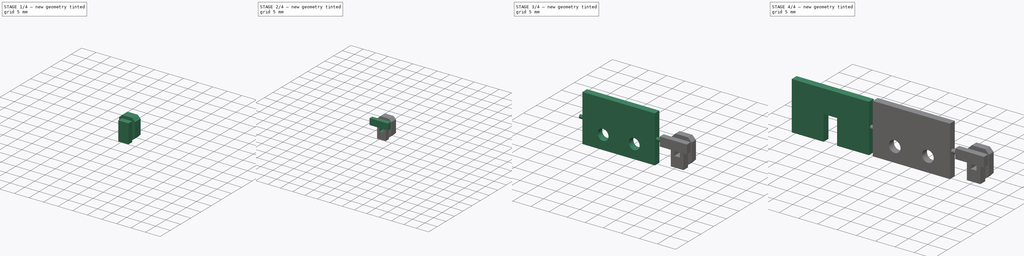
[diagram: build sequence overview — one tinted view per stage of 4, left to right]
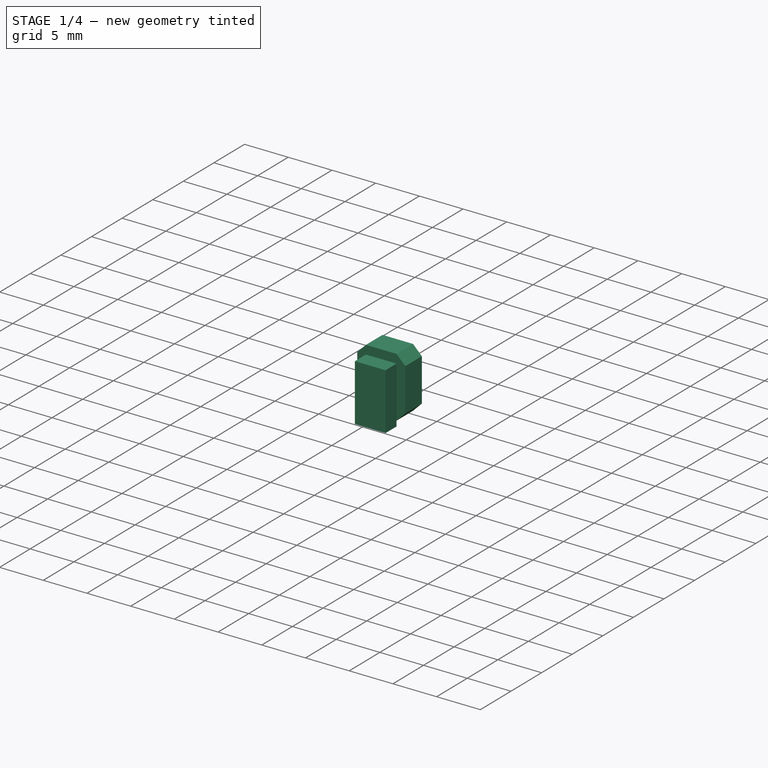
[diagram: stage 1 of 4 — iso view after this stage's code; geometry added in this stage tinted green]
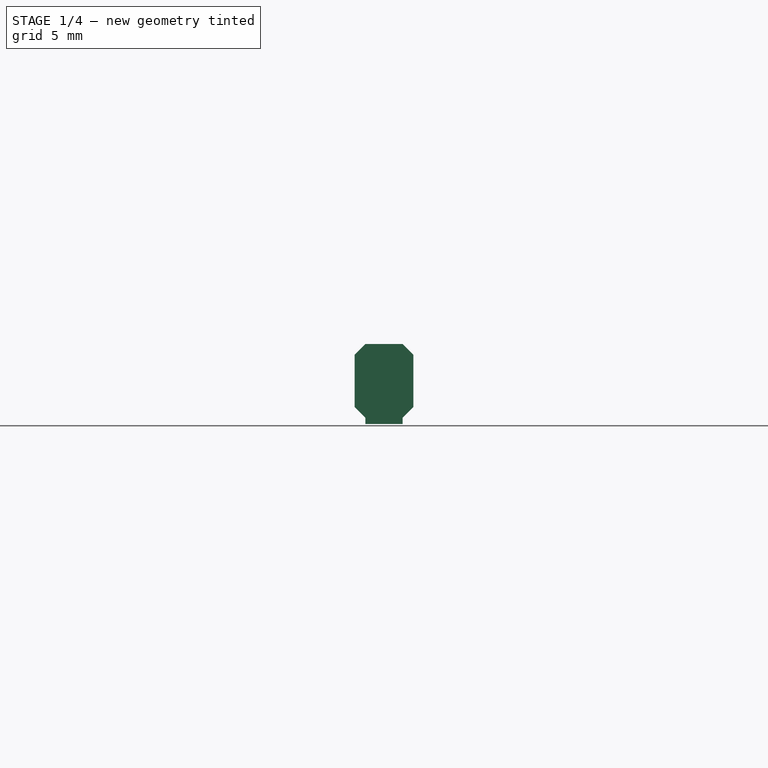
[diagram: stage 1 of 4 — front view after this stage's code; geometry added in this stage tinted green]
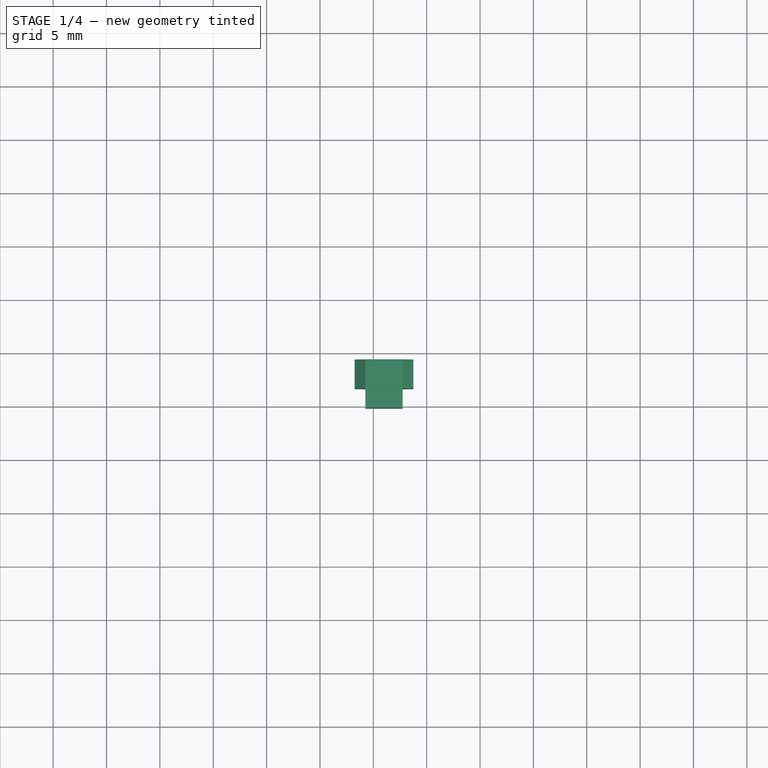
[diagram: stage 1 of 4 — top view after this stage's code; geometry added in this stage tinted green]
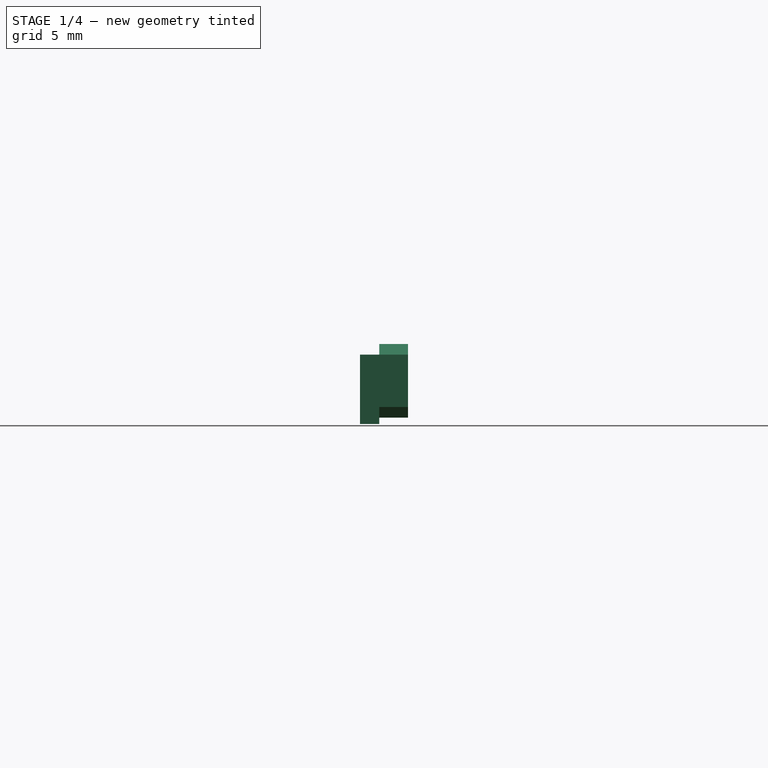
[diagram: stage 1 of 4 — right view after this stage's code; geometry added in this stage tinted green]
FCSTD DOCUMENT  (FreeCAD 0.16R6706 (Git))
Label: covers-cap
License: All rights reserved
LicenseURL: http://en.wikipedia.org/wiki/All_rights_reserved
objects: Sketcher::SketchObject×7, PartDesign::Pad×6, PartDesign::Pocket×1, PartDesign::Chamfer×1, Part::MultiFuse×1
note: 23 computed .brp shape members not serialized (recipe doc carries the construction recipe); baked Part::Feature solids carry a one-line shape summary decoded from their .brp

FEATURE [Sketcher::SketchObject] Sketch  label="Body"
  Placement = pos=(36,1.65,0) rot=(1,0,0;1.5708rad)
  sketch-geometry (4):
    g0: LineSegment StartX=1.75 StartY=0 StartZ=0 EndX=-1.75 EndY=0 EndZ=0
    g1: LineSegment StartX=-1.75 StartY=0 StartZ=0 EndX=-1.75 EndY=6.5 EndZ=0
    g2: LineSegment StartX=-1.75 StartY=6.5 StartZ=0 EndX=1.75 EndY=6.5 EndZ=0
    g3: LineSegment StartX=1.75 StartY=6.5 StartZ=0 EndX=1.75 EndY=0 EndZ=0
  constraints (12):
    c: Coincident(g0,g1)
    c: Coincident(g1,g2)
    c: Coincident(g2,g3)
    c: Coincident(g3,g0)
    c: Horizontal(g0)
    c: Horizontal(g2)
    c: Vertical(g1)
    c: Vertical(g3)
    c: PointOnObject(g0,g-1)
    c: Symmetric(g2,g1,g-2)
    c: DistanceY(g3,g3) = 6.5  'Height'
    c: DistanceX(g2,g2) = 3.5  'Width'
FEATURE [PartDesign::Pad] Pad002  label="PadBody"
  Length = 1.8
  Length2 = 100
  Placement = pos=(36,1.65,0) rot=(1,0,0;1.5708rad)
  Sketch = -> Sketch
  Type = 0
FEATURE [Sketcher::SketchObject] Sketch003  label="Cap"
  ExternalGeometry = -> [Pad002]
  Placement = pos=(36,1.65,0) rot=(-1,0,0;1.5708rad)
  Support = -> Pad002 [Face5]
  sketch-geometry (8):
    g0: LineSegment StartX=-1.75 StartY=-0.6 StartZ=0 EndX=1.75 EndY=-0.6 EndZ=0
    g1: LineSegment StartX=2.75 StartY=-1.6 StartZ=0 EndX=2.75 EndY=-6.5 EndZ=0
    g2: LineSegment StartX=1.75 StartY=-7.5 StartZ=0 EndX=-1.75 EndY=-7.5 EndZ=0
    g3: LineSegment StartX=-2.75 StartY=-6.5 StartZ=0 EndX=-2.75 EndY=-1.6 EndZ=0
    g4: LineSegment StartX=-1.75 StartY=-0.6 StartZ=0 EndX=-2.75 EndY=-1.6 EndZ=0
    g5: LineSegment StartX=1.75 StartY=-0.6 StartZ=0 EndX=2.75 EndY=-1.6 EndZ=0
    g6: LineSegment StartX=2.75 StartY=-6.5 StartZ=0 EndX=1.75 EndY=-7.5 EndZ=0
    g7: LineSegment StartX=-2.75 StartY=-6.5 StartZ=0 EndX=-1.75 EndY=-7.5 EndZ=0
  constraints (23):
    c: Horizontal(g2)
    c: Vertical(g1)
    c: Vertical(g3)
    c: Coincident(g0,g4)  'Constraint8'
    c: Coincident(g3,g4)  'Constraint7'
    c: Coincident(g0,g5)  'Constraint6'
    c: Coincident(g1,g5)
    c: DistanceY(g0,g-3) = 0.6  'ClearancePCB'
    c: Coincident(g3,g7)
    c: Coincident(g2,g7)
    c: Coincident(g2,g6)
    c: Coincident(g1,g6)
    c: DistanceY(g2,g0) = 6.9  'Height'
    c: DistanceX(g3,g1) = 5.5  'Width'
    c: Equal(g6,g7)
    c: Equal(g7,g4)
    c: Equal(g4,g5)
    c: Symmetric(g0,g0,g-2)
    c: DistanceX(g4,g4) = 1  'ChamferWidth'
    c: DistanceY(g4,g4) = 1  'ChamferHeight'
    c: Symmetric(g1,g3,g-2)
    c: Equal(g3,g1)
    c: Equal(g2,g0)
FEATURE [PartDesign::Pad] Pad003  label="PadCap"
  Length = 2.7
  Length2 = 100
  Placement = pos=(36,1.65,0) rot=(1,0,0;1.5708rad)
  Sketch = -> Sketch003
  Type = 0
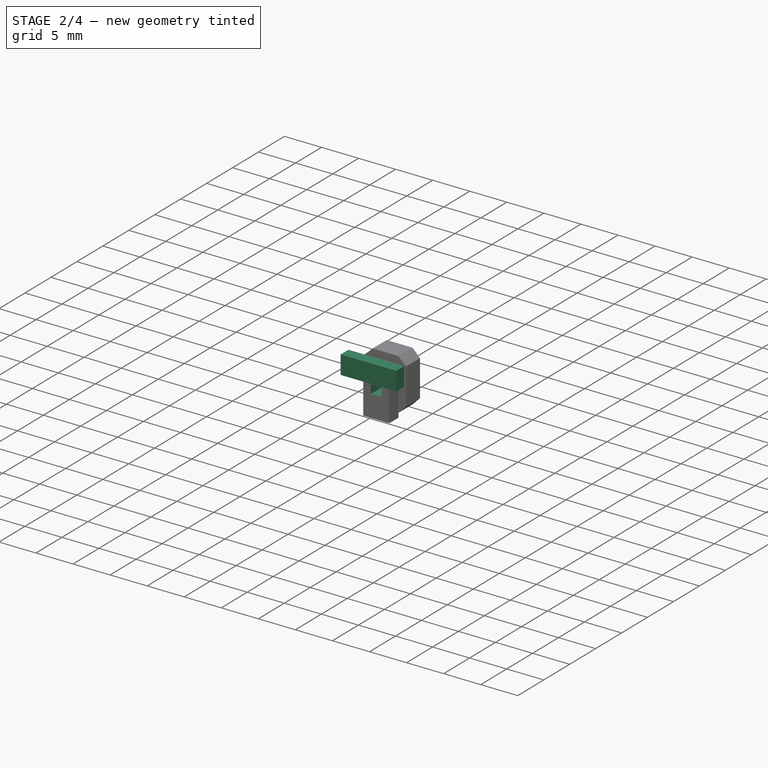
[diagram: stage 2 of 4 — iso view after this stage's code; geometry added in this stage tinted green]
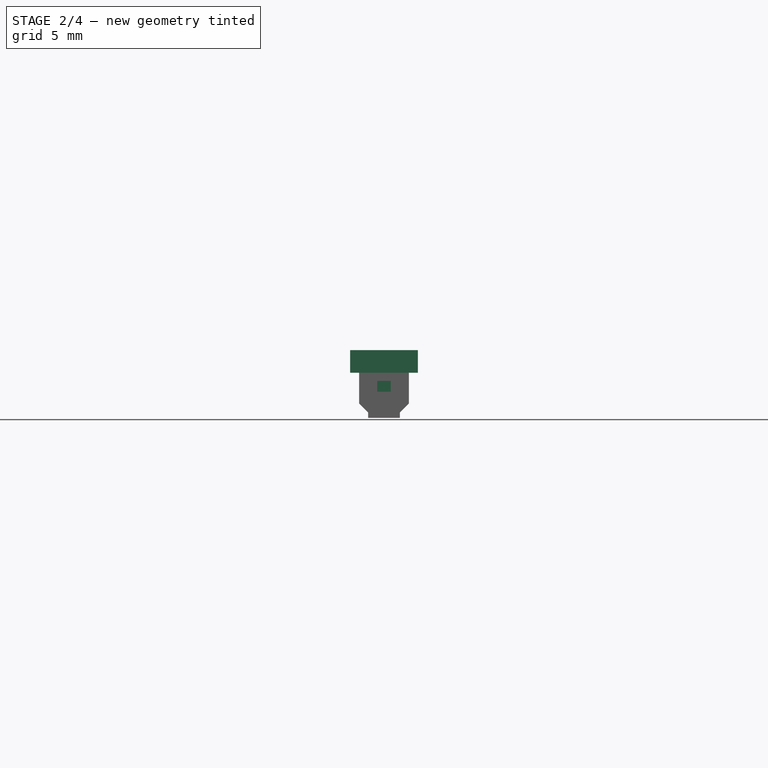
[diagram: stage 2 of 4 — front view after this stage's code; geometry added in this stage tinted green]
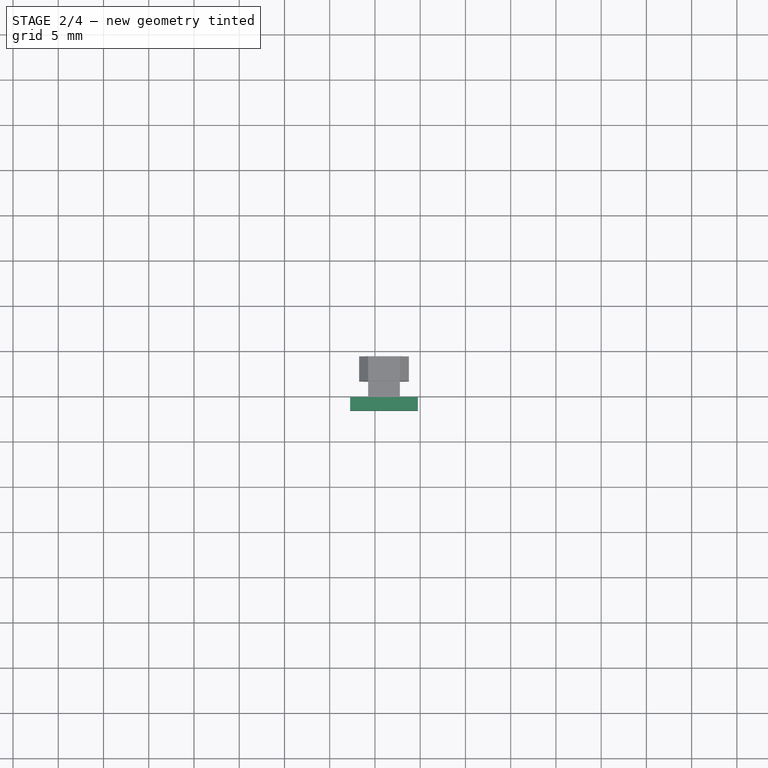
[diagram: stage 2 of 4 — top view after this stage's code; geometry added in this stage tinted green]
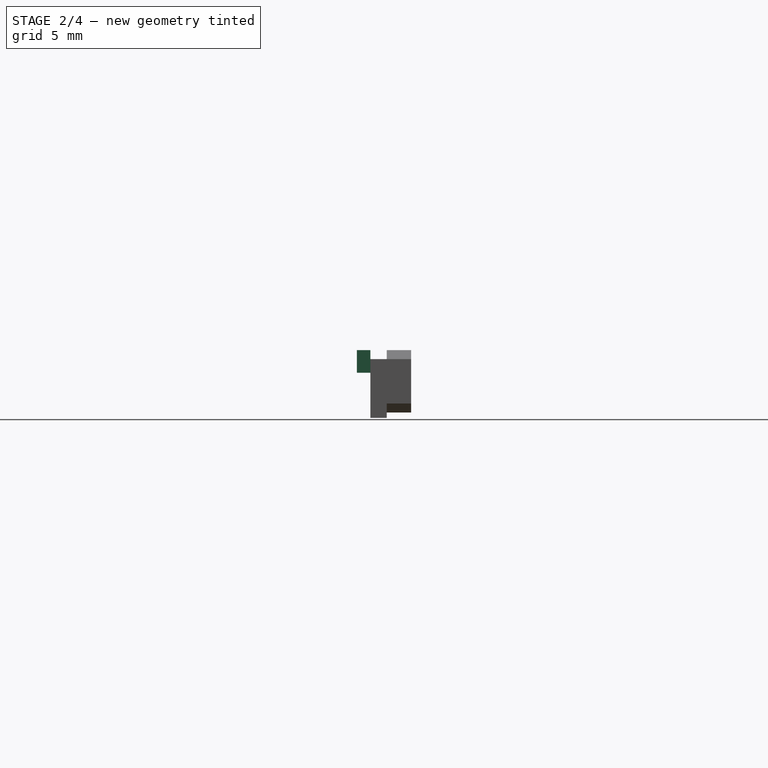
[diagram: stage 2 of 4 — right view after this stage's code; geometry added in this stage tinted green]
FEATURE [Sketcher::SketchObject] Sketch004  label="SwitchHole"
  ExternalGeometry = -> [Pad003]
  Placement = pos=(36,-0.15,0) rot=(1,0,0;1.5708rad)
  Support = -> Pad003 [Face5]
  sketch-geometry (4):
    g0: LineSegment StartX=-0.75 StartY=4.1 StartZ=0 EndX=0.75 EndY=4.1 EndZ=0
    g1: LineSegment StartX=0.75 StartY=4.1 StartZ=0 EndX=0.75 EndY=2.9 EndZ=0
    g2: LineSegment StartX=0.75 StartY=2.9 StartZ=0 EndX=-0.75 EndY=2.9 EndZ=0
    g3: LineSegment StartX=-0.75 StartY=2.9 StartZ=0 EndX=-0.75 EndY=4.1 EndZ=0
  constraints (12):
    c: Coincident(g0,g1)
    c: Coincident(g1,g2)
    c: Coincident(g2,g3)
    c: Coincident(g3,g0)
    c: Horizontal(g0)
    c: Horizontal(g2)
    c: Vertical(g1)
    c: Vertical(g3)
    c: DistanceY(g-3,g1) = 2.9  'HoleBottomFromPCB'
    c: Symmetric(g1,g2,g-2)
    c: DistanceY(g1,g1) = 1.2  'Height'
    c: DistanceX(g0,g0) = 1.5  'Width'
FEATURE [PartDesign::Pocket] Pocket  label="PocketSwitchHole"
  Length = 2.5
  Placement = pos=(36,1.65,0) rot=(1,0,0;1.5708rad)
  Sketch = -> Sketch004
  Type = 0
FEATURE [Sketcher::SketchObject] Sketch005  label="Support"
  ExternalGeometry = -> [Pocket]
  Placement = pos=(36,-0.15,0) rot=(1,0,0;1.5708rad)
  Support = -> Pocket [Face5]
  sketch-geometry (4):
    g0: LineSegment StartX=-3.75 StartY=7.5 StartZ=0 EndX=3.75 EndY=7.5 EndZ=0
    g1: LineSegment StartX=3.75 StartY=7.5 StartZ=0 EndX=3.75 EndY=5 EndZ=0
    g2: LineSegment StartX=3.75 StartY=5 StartZ=0 EndX=-3.75 EndY=5 EndZ=0
    g3: LineSegment StartX=-3.75 StartY=5 StartZ=0 EndX=-3.75 EndY=7.5 EndZ=0
  constraints (12):
    c: Coincident(g0,g1)
    c: Coincident(g1,g2)
    c: Coincident(g2,g3)
    c: Coincident(g3,g0)
    c: Horizontal(g0)
    c: Horizontal(g2)
    c: Vertical(g1)
    c: Vertical(g3)
    c: DistanceY(g-3,g1) = 5  'SupportBottomFromPCB'
    c: Symmetric(g0,g0,g-2)
    c: DistanceY(g1,g1) = 2.5  'Height'
    c: DistanceX(g0,g0) = 7.5  'Width'
FEATURE [PartDesign::Pad] Pad004  label="PadSupport"
  Length = 1.5
  Length2 = 100
  Placement = pos=(36,1.65,0) rot=(1,0,0;1.5708rad)
  Sketch = -> Sketch005
  Type = 0
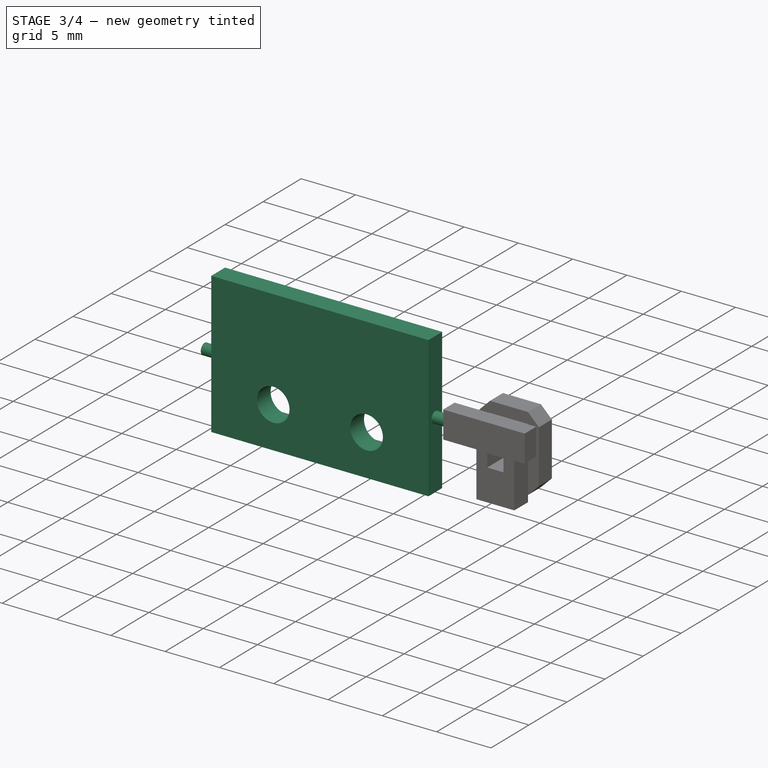
[diagram: stage 3 of 4 — iso view after this stage's code; geometry added in this stage tinted green]
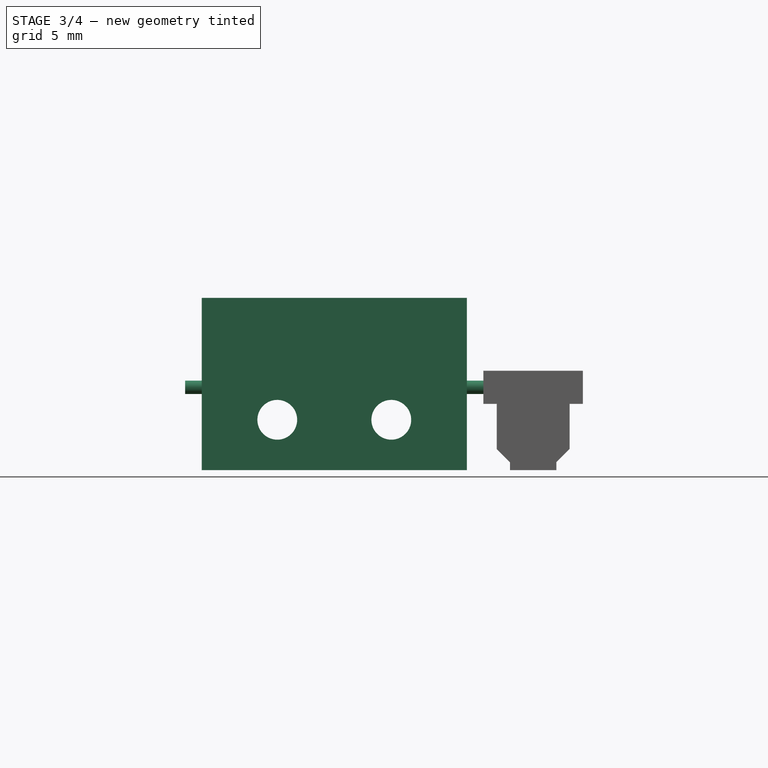
[diagram: stage 3 of 4 — front view after this stage's code; geometry added in this stage tinted green]
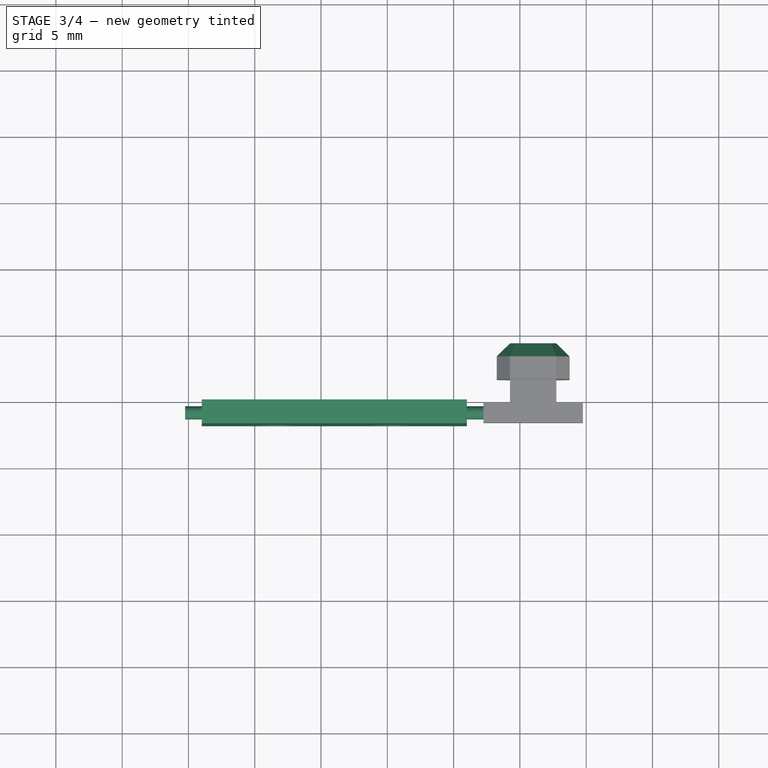
[diagram: stage 3 of 4 — top view after this stage's code; geometry added in this stage tinted green]
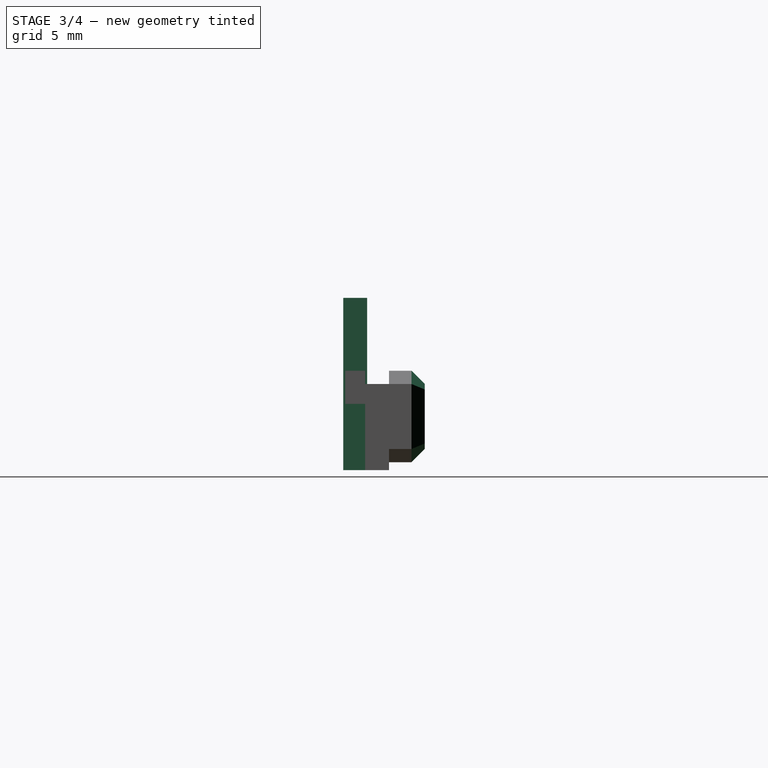
[diagram: stage 3 of 4 — right view after this stage's code; geometry added in this stage tinted green]
FEATURE [Sketcher::SketchObject] Sketch002  label="Cover001"
  Placement = pos=(21,0,0) rot=(1,0,0;1.5708rad)
  sketch-geometry (7):
    g0: LineSegment StartX=10 StartY=0 StartZ=0 EndX=-10 EndY=0 EndZ=0
    g1: LineSegment StartX=-10 StartY=0 StartZ=0 EndX=-10 EndY=13 EndZ=0
    g2: LineSegment StartX=-10 StartY=13 StartZ=0 EndX=10 EndY=13 EndZ=0
    g3: LineSegment StartX=10 StartY=13 StartZ=0 EndX=10 EndY=0 EndZ=0
    g4: Circle CenterX=-4.3 CenterY=3.8 CenterZ=0 NormalX=0 NormalY=0 NormalZ=1 Radius=1.5
    g5: Circle CenterX=4.3 CenterY=3.8 CenterZ=0 NormalX=0 NormalY=0 NormalZ=1 Radius=1.5
    g6: LineSegment [constr] StartX=4.3 StartY=3.8 StartZ=0 EndX=-4.3 EndY=3.8 EndZ=0
  constraints (20):
    c: Coincident(g0,g1)
    c: Coincident(g1,g2)
    c: Coincident(g2,g3)
    c: Coincident(g3,g0)
    c: Horizontal(g0)
    c: Horizontal(g2)
    c: Vertical(g1)
    c: Vertical(g3)
    c: PointOnObject(g0,g-1)
    c: Symmetric(g1,g2,g-2)
    c: DistanceX(g2,g2) = 20  'Width'
    c: DistanceY(g1,g1) = 13  'Height'
    c: Coincident(g6,g5)
    c: Coincident(g6,g4)
    c: Horizontal(g6)
    c: Radius(g5) = 1.5  'HoleRadius'
    c: Equal(g5,g4)
    c: Symmetric(g5,g4,g-2)
    c: DistanceX(g6,g6) = 8.6  'HolePitch'
    c: DistanceY(g0,g5) = 3.8  'HoleCenterFromPCB'
FEATURE [PartDesign::Pad] Pad
  Length = 1.8
  Length2 = 100
  Placement = pos=(21,0,0) rot=(1,0,0;1.5708rad)
  Sketch = -> Sketch002
  Type = 0
FEATURE [PartDesign::Chamfer] Chamfer
  Base = -> Pad004 [Edge51,Edge52,Edge36,Edge54,Edge56,Edge58,Edge60,Edge61]
  Placement = pos=(36,1.65,0) rot=(1,0,0;1.5708rad)
  Size = 1
FEATURE [Sketcher::SketchObject] Sketch006
  ExternalGeometry = -> [Chamfer]
  Placement = pos=(39.75,1.65,0) rot=(0.707107,0,0.707107;3.14159rad)
  Support = -> Chamfer [Face32]
  sketch-geometry (3):
    g0: Circle CenterX=6.25 CenterY=2.55 CenterZ=0 NormalX=0 NormalY=0 NormalZ=1 Radius=0.5
    g1: LineSegment [constr] StartX=7.5 StartY=3.3 StartZ=0 EndX=6.25 EndY=2.55 EndZ=0
    g2: LineSegment [constr] StartX=6.25 StartY=2.55 StartZ=0 EndX=5 EndY=1.8 EndZ=0
  constraints (7):
    c: Coincident(g-6,g1)
    c: Coincident(g1,g2)
    c: Coincident(g2,g-5)
    c: Coincident(g0,g1)
    c: Equal(g1,g2)
    c: Parallel(g1,g2)
    c: Radius(g0) = 0.5
FEATURE [PartDesign::Pad] Pad005
  Length = 30
  Length2 = 100
  Placement = pos=(36,1.65,0) rot=(1,0,0;1.5708rad)
  Reversed = true
  Sketch = -> Sketch006
  Type = 0
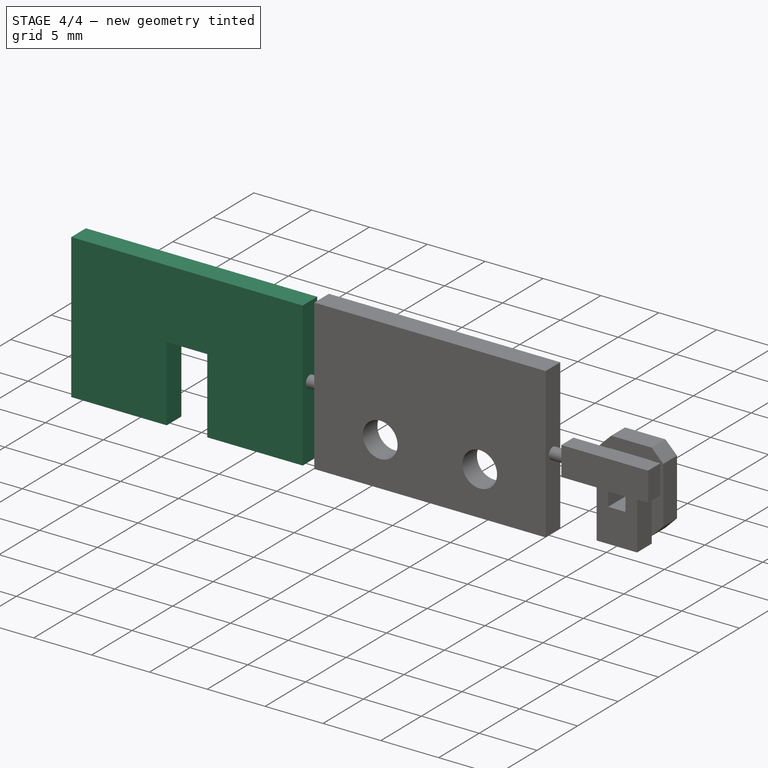
[diagram: stage 4 of 4 — iso view after this stage's code; geometry added in this stage tinted green]
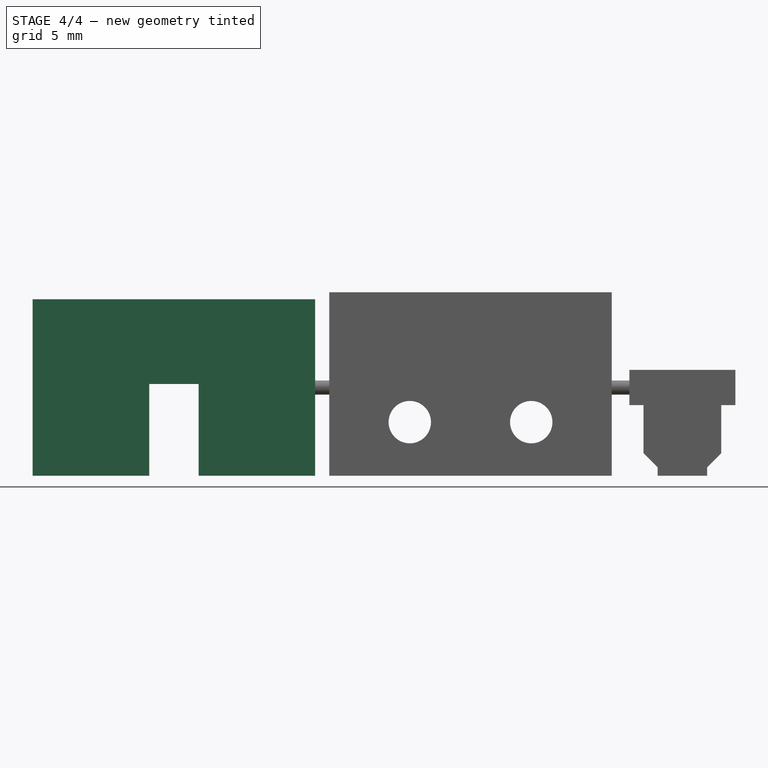
[diagram: stage 4 of 4 — front view after this stage's code; geometry added in this stage tinted green]
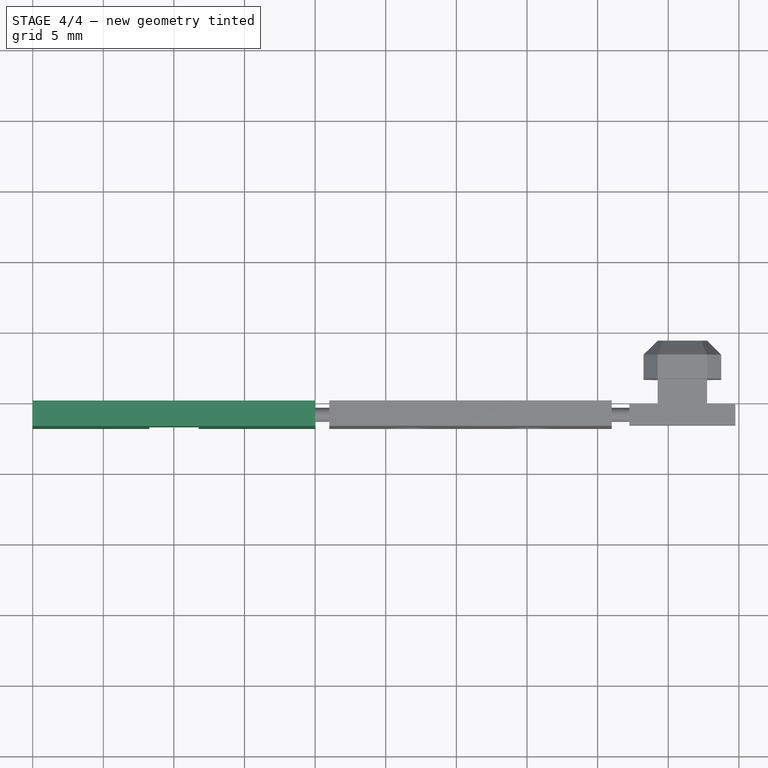
[diagram: stage 4 of 4 — top view after this stage's code; geometry added in this stage tinted green]
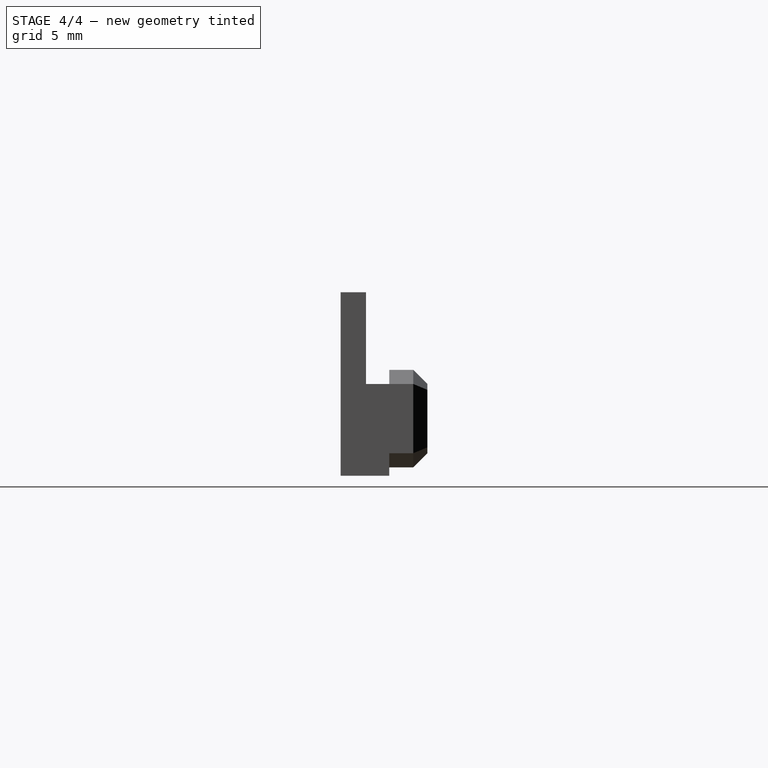
[diagram: stage 4 of 4 — right view after this stage's code; geometry added in this stage tinted green]
FEATURE [Sketcher::SketchObject] Sketch001  label="Cover"
  Placement = pos=(0,0,0) rot=(1,0,0;1.5708rad)
  sketch-geometry (8):
    g0: LineSegment StartX=10 StartY=0 StartZ=0 EndX=1.75 EndY=0 EndZ=0
    g1: LineSegment StartX=-10 StartY=0 StartZ=0 EndX=-10 EndY=12.5 EndZ=0
    g2: LineSegment StartX=-10 StartY=12.5 StartZ=0 EndX=10 EndY=12.5 EndZ=0
    g3: LineSegment StartX=10 StartY=12.5 StartZ=0 EndX=10 EndY=0 EndZ=0
    g4: LineSegment StartX=1.75 StartY=0 StartZ=0 EndX=1.75 EndY=6.5 EndZ=0
    g5: LineSegment StartX=1.75 StartY=6.5 StartZ=0 EndX=-1.75 EndY=6.5 EndZ=0
    g6: LineSegment StartX=-1.75 StartY=6.5 StartZ=0 EndX=-1.75 EndY=0 EndZ=0
    g7: LineSegment StartX=-1.75 StartY=0 StartZ=0 EndX=-10 EndY=0 EndZ=0
  constraints (24):
    c: Coincident(g7,g1)
    c: Coincident(g1,g2)
    c: Coincident(g2,g3)
    c: Coincident(g3,g0)
    c: Horizontal(g0)
    c: Horizontal(g2)
    c: Vertical(g1)
    c: Vertical(g3)
    c: PointOnObject(g0,g-1)
    c: Symmetric(g2,g1,g-2)
    c: Coincident(g4,g5)
    c: Coincident(g5,g6)
    c: Horizontal(g5)
    c: Vertical(g4)
    c: Vertical(g6)
    c: PointOnObject(g6,g0)
    c: PointOnObject(g7,g6)
    c: Tangent(g0,g7)
    c: Coincident(g0,g4)
    c: Symmetric(g4,g5,g-2)
    c: DistanceY(g1,g1) = 12.5  'Height'
    c: DistanceX(g2,g2) = 20  'Width'
    c: DistanceY(g6,g6) = 6.5  'Cutout height'
    c: DistanceX(g5,g5) = 3.5  'Cutout width'
FEATURE [PartDesign::Pad] Pad001  label="PadCover"
  Length = 1.8
  Length2 = 100
  Placement = pos=(0,0,0) rot=(1,0,0;1.5708rad)
  Sketch = -> Sketch001
  Type = 0
FEATURE [Part::MultiFuse] Fusion
  Shapes = -> [Pad,Pad005,Pad001]
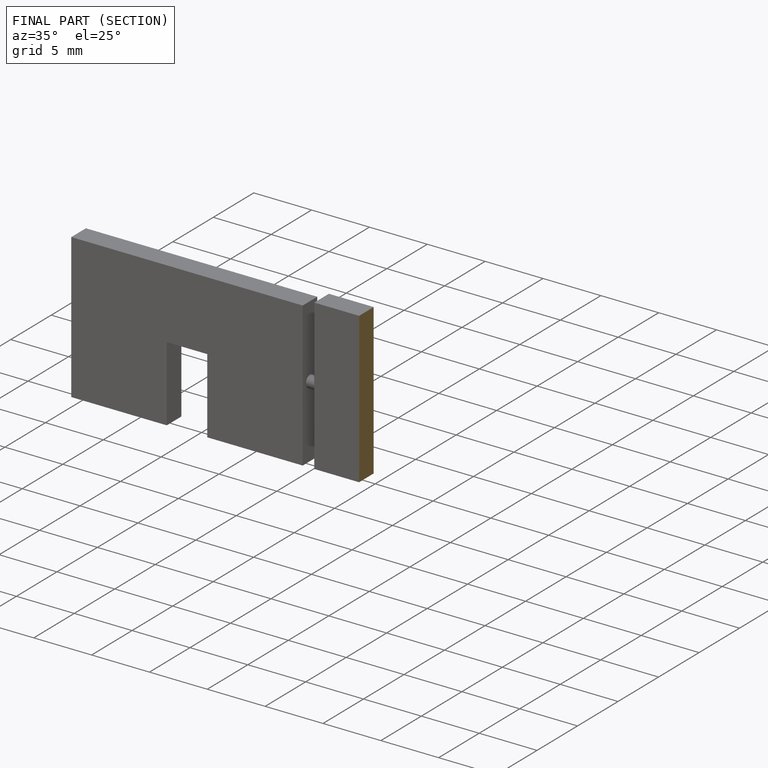
[diagram: finished part — half-section view (interior)]
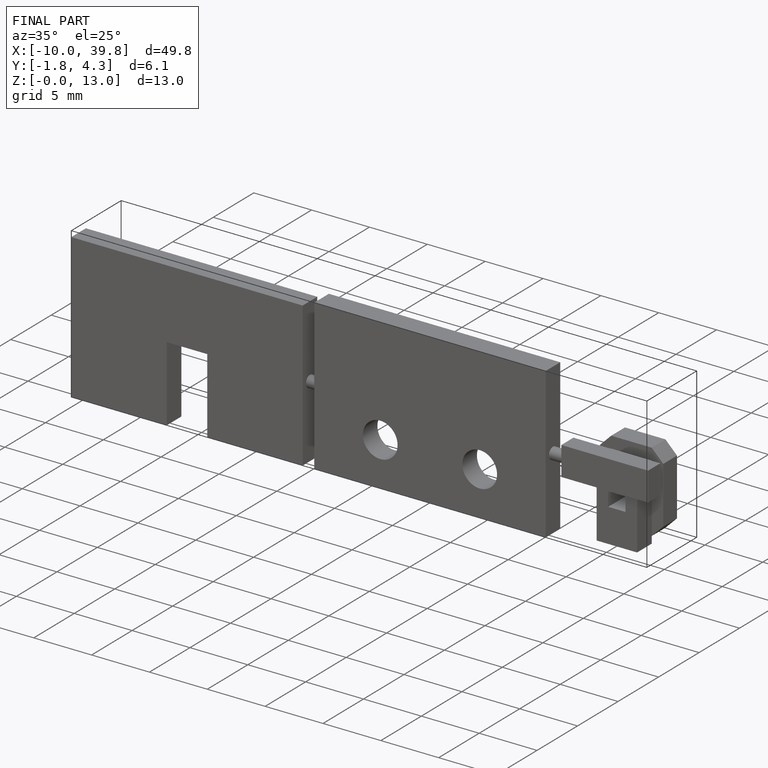
[diagram: finished part — iso view with bounding-box wireframe]
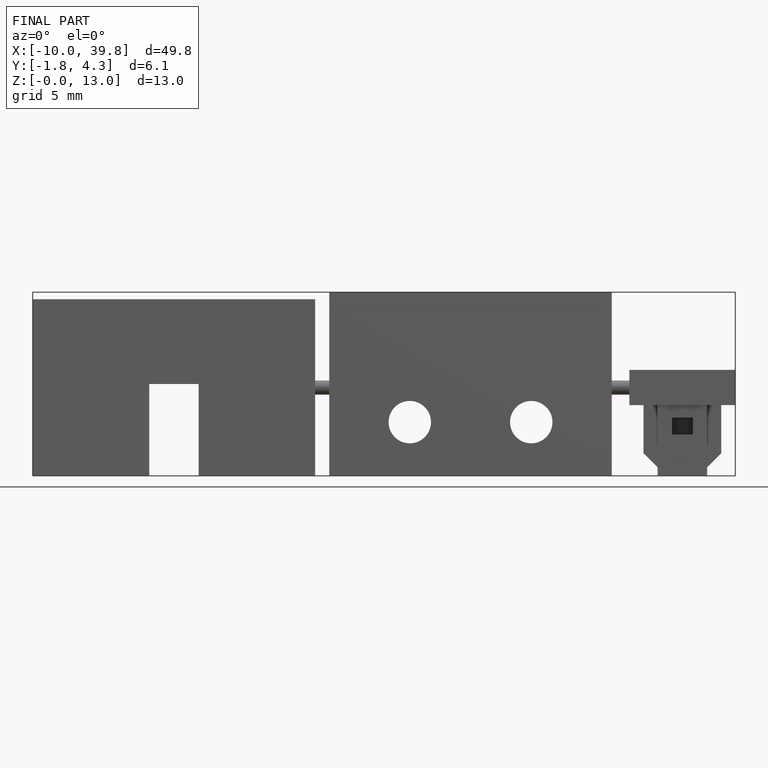
[diagram: finished part — front view with bounding-box wireframe]
